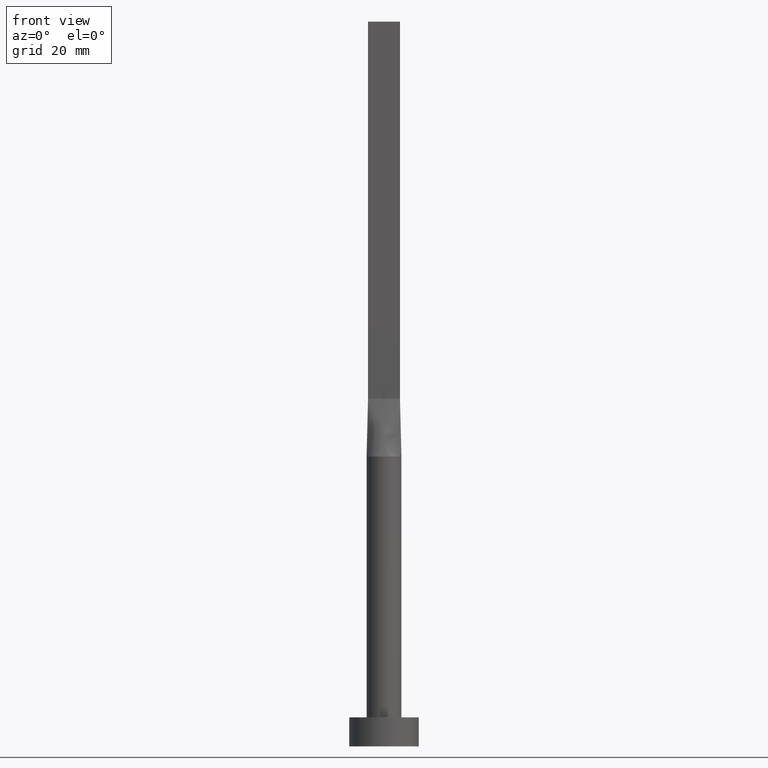
[diagram: clean part render]
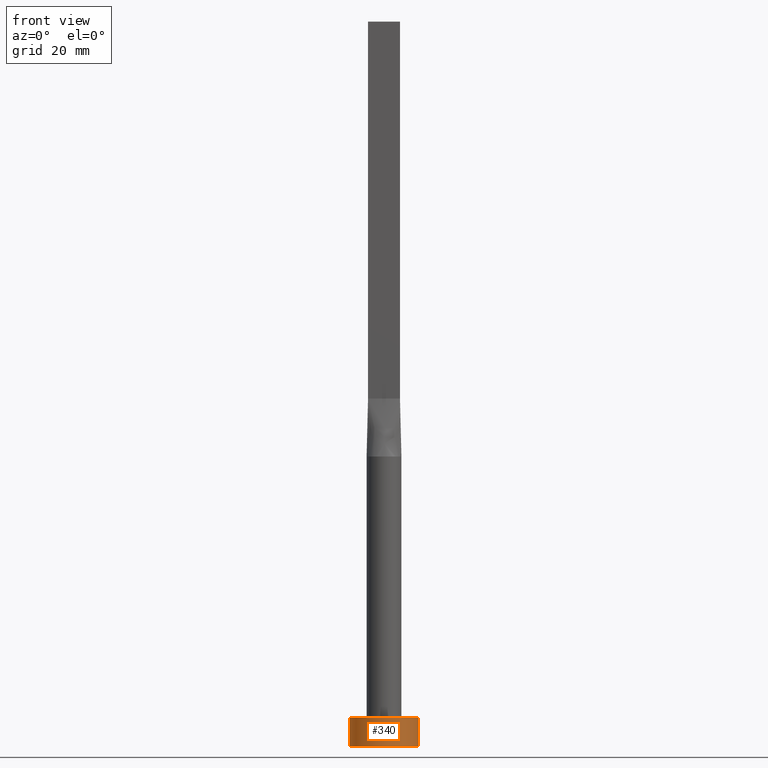
[diagram: same view with one face highlighted and labeled with its STEP entity id]
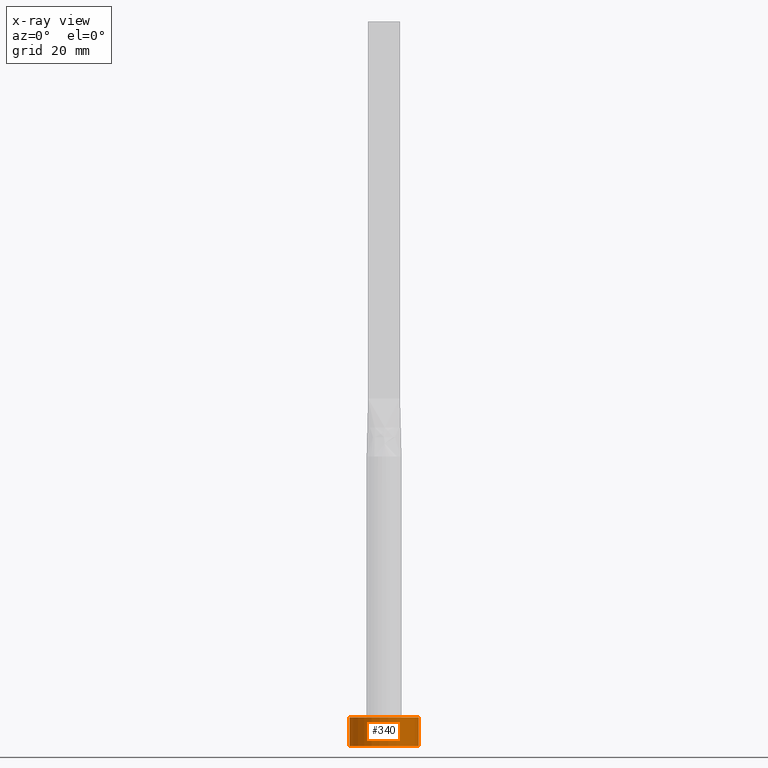
[diagram: x-ray of the same camera — body ghosted, the highlighted face saturated]
A machine part, front view. The second image highlights one B-rep face of the part: STEP entity #340.
The next image is the same camera in x-ray: the body ghosted, the highlighted face saturated — about 0% of this face is hidden behind the body in this view.
In plain terms, the highlighted cylindrical surface (edge-blend (fillet) strip) has radius 6 mm, axis along (-0, -0, -1).
Its self-contained STEP definition (entity closure, byte-faithful):
#9 = EDGE_CURVE ( 'NONE', #261, #267, #519, .T. ) ;
#28 = CYLINDRICAL_SURFACE ( 'NONE', #183, 6.000000000000000888 ) ;
#74 = ORIENTED_EDGE ( 'NONE', *, *, #9, .F. ) ;
#81 = CARTESIAN_POINT ( 'NONE',  ( 6.000000000000000888, 7.347880794884120722E-16, 0.000000000000000000 ) ) ;
#84 = DIRECTION ( 'NONE',  ( 0.000000000000000000, 0.000000000000000000, 1.000000000000000000 ) ) ;
#92 = VECTOR ( 'NONE', #299, 1000.000000000000000 ) ;
#116 = DIRECTION ( 'NONE',  ( -0.000000000000000000, -0.000000000000000000, -1.000000000000000000 ) ) ;
#120 = VECTOR ( 'NONE', #116, 1000.000000000000000 ) ;
#145 = EDGE_CURVE ( 'NONE', #426, #384, #203, .T. ) ;
#147 = EDGE_LOOP ( 'NONE', ( #74, #372, #494, #454 ) ) ;
#167 = CARTESIAN_POINT ( 'NONE',  ( 0.000000000000000000, 0.000000000000000000, 5.000000000000000000 ) ) ;
#169 = CARTESIAN_POINT ( 'NONE',  ( 6.000000000000000888, 7.347880794884120722E-16, 5.000000000000000000 ) ) ;
#174 = CARTESIAN_POINT ( 'NONE',  ( 0.000000000000000000, 0.000000000000000000, 5.000000000000000000 ) ) ;
#176 = CARTESIAN_POINT ( 'NONE',  ( 6.000000000000000888, 7.347880794884120722E-16, 5.000000000000000000 ) ) ;
#183 = AXIS2_PLACEMENT_3D ( 'NONE', #174, #385, #332 ) ;
#203 = LINE ( 'NONE', #374, #120 ) ;
#212 = DIRECTION ( 'NONE',  ( 1.000000000000000000, 0.000000000000000000, 0.000000000000000000 ) ) ;
#256 = CARTESIAN_POINT ( 'NONE',  ( 0.000000000000000000, 0.000000000000000000, 0.000000000000000000 ) ) ;
#259 = DIRECTION ( 'NONE',  ( 1.000000000000000000, 0.000000000000000000, 0.000000000000000000 ) ) ;
#261 = VERTEX_POINT ( 'NONE', #176 ) ;
#267 = VERTEX_POINT ( 'NONE', #81 ) ;
#280 = EDGE_CURVE ( 'NONE', #384, #267, #347, .T. ) ;
#297 = DIRECTION ( 'NONE',  ( 0.000000000000000000, 0.000000000000000000, 1.000000000000000000 ) ) ;
#298 = FACE_OUTER_BOUND ( 'NONE', #147, .T. ) ;
#299 = DIRECTION ( 'NONE',  ( -0.000000000000000000, -0.000000000000000000, -1.000000000000000000 ) ) ;
#327 = CARTESIAN_POINT ( 'NONE',  ( -6.000000000000000888, 0.000000000000000000, 5.000000000000000000 ) ) ;
#332 = DIRECTION ( 'NONE',  ( -1.000000000000000000, 0.000000000000000000, 0.000000000000000000 ) ) ;
#340 = ADVANCED_FACE ( 'NONE', ( #298 ), #28, .T. ) ;
#347 = CIRCLE ( 'NONE', #479, 6.000000000000000888 ) ;
#372 = ORIENTED_EDGE ( 'NONE', *, *, #407, .F. ) ;
#374 = CARTESIAN_POINT ( 'NONE',  ( -6.000000000000000888, 0.000000000000000000, 5.000000000000000000 ) ) ;
#384 = VERTEX_POINT ( 'NONE', #433 ) ;
#385 = DIRECTION ( 'NONE',  ( -0.000000000000000000, -0.000000000000000000, -1.000000000000000000 ) ) ;
#407 = EDGE_CURVE ( 'NONE', #426, #261, #498, .T. ) ;
#426 = VERTEX_POINT ( 'NONE', #327 ) ;
#433 = CARTESIAN_POINT ( 'NONE',  ( -6.000000000000000888, 0.000000000000000000, 0.000000000000000000 ) ) ;
#454 = ORIENTED_EDGE ( 'NONE', *, *, #280, .T. ) ;
#479 = AXIS2_PLACEMENT_3D ( 'NONE', #256, #297, #212 ) ;
#494 = ORIENTED_EDGE ( 'NONE', *, *, #145, .T. ) ;
#498 = CIRCLE ( 'NONE', #566, 6.000000000000000888 ) ;
#519 = LINE ( 'NONE', #169, #92 ) ;
#566 = AXIS2_PLACEMENT_3D ( 'NONE', #167, #84, #259 ) ;